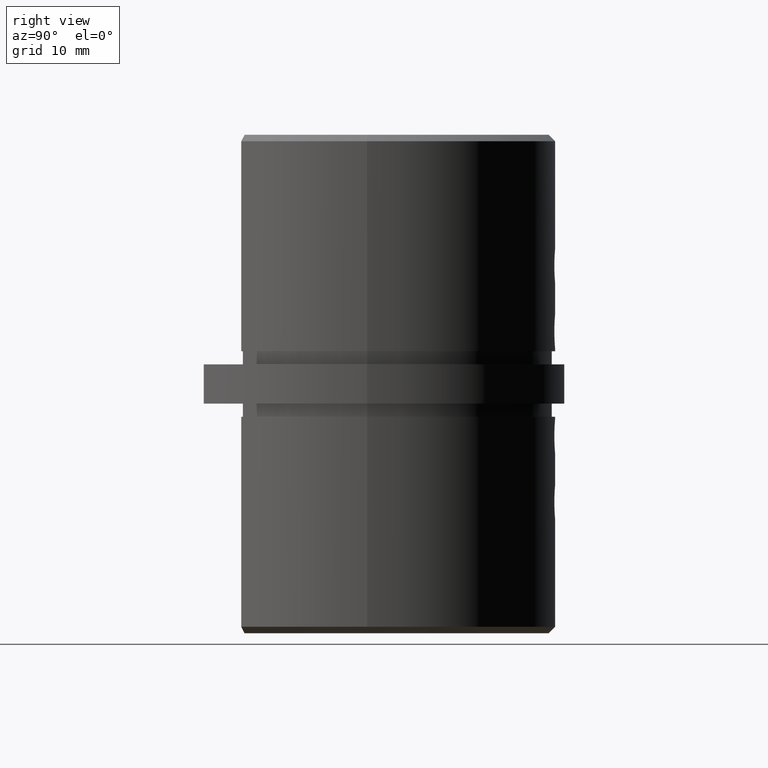
[diagram: clean part render]
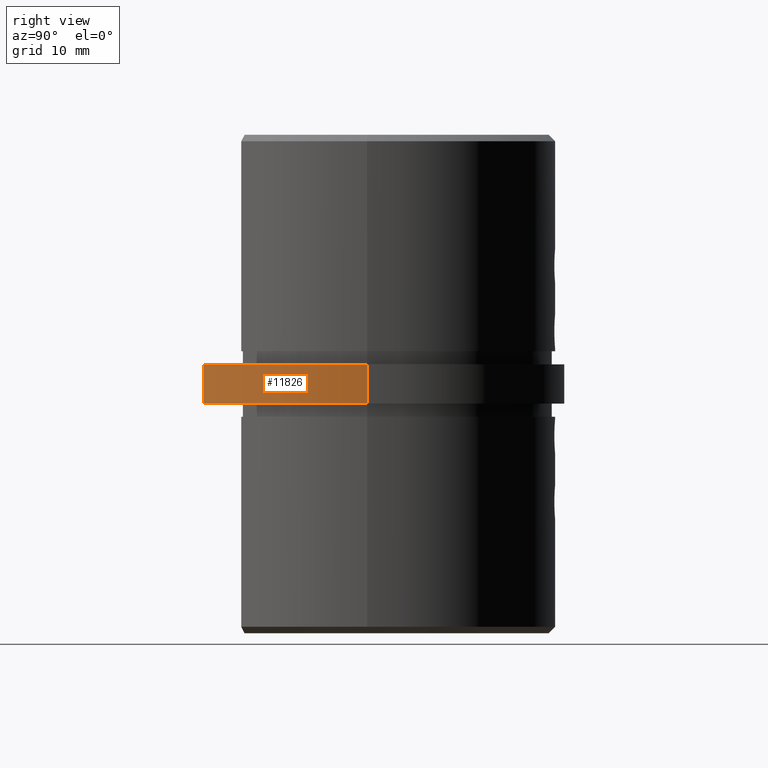
[diagram: same view with one face highlighted and labeled with its STEP entity id]
A machine part, right view. The second image highlights one B-rep face of the part: STEP entity #11826.
In plain terms, the highlighted cylindrical surface (partial cylindrical patch) has radius 30.15 mm, axis along (-0, -0, -1).
Its self-contained STEP definition (entity closure, byte-faithful):
#231 = CIRCLE ( 'NONE', #1658, 30.15000000000000213 ) ;
#325 = DIRECTION ( 'NONE',  ( 0.000000000000000000, 0.000000000000000000, 1.000000000000000000 ) ) ;
#1115 = VERTEX_POINT ( 'NONE', #8573 ) ;
#1167 = ORIENTED_EDGE ( 'NONE', *, *, #10918, .F. ) ;
#1658 = AXIS2_PLACEMENT_3D ( 'NONE', #3305, #6250, #16366 ) ;
#2430 = EDGE_CURVE ( 'NONE', #1115, #13264, #231, .T. ) ;
#2435 = CARTESIAN_POINT ( 'NONE',  ( 17.00000000000000355, -24.90025100275095582, -3.000000000000000000 ) ) ;
#2977 = CARTESIAN_POINT ( 'NONE',  ( 30.15000000000000213, 3.692310099429270397E-15, 3.000000000000000000 ) ) ;
#3080 = DIRECTION ( 'NONE',  ( -0.000000000000000000, -0.000000000000000000, -1.000000000000000000 ) ) ;
#3305 = CARTESIAN_POINT ( 'NONE',  ( 0.000000000000000000, 0.000000000000000000, 3.000000000000000000 ) ) ;
#3424 = DIRECTION ( 'NONE',  ( -0.000000000000000000, -0.000000000000000000, -1.000000000000000000 ) ) ;
#4241 = AXIS2_PLACEMENT_3D ( 'NONE', #8192, #3424, #14480 ) ;
#4767 = VECTOR ( 'NONE', #5617, 1000.000000000000000 ) ;
#5401 = ORIENTED_EDGE ( 'NONE', *, *, #14409, .T. ) ;
#5554 = DIRECTION ( 'NONE',  ( 1.000000000000000000, 0.000000000000000000, 0.000000000000000000 ) ) ;
#5617 = DIRECTION ( 'NONE',  ( -0.000000000000000000, -0.000000000000000000, -1.000000000000000000 ) ) ;
#6250 = DIRECTION ( 'NONE',  ( 0.000000000000000000, 0.000000000000000000, 1.000000000000000000 ) ) ;
#6477 = CIRCLE ( 'NONE', #6665, 30.15000000000000213 ) ;
#6665 = AXIS2_PLACEMENT_3D ( 'NONE', #9330, #325, #5554 ) ;
#7204 = EDGE_CURVE ( 'NONE', #16157, #15135, #6477, .T. ) ;
#7846 = VECTOR ( 'NONE', #3080, 1000.000000000000000 ) ;
#8192 = CARTESIAN_POINT ( 'NONE',  ( 0.000000000000000000, 0.000000000000000000, 3.000000000000000000 ) ) ;
#8573 = CARTESIAN_POINT ( 'NONE',  ( 17.00000000000000355, -24.90025100275095582, 3.000000000000000000 ) ) ;
#9155 = LINE ( 'NONE', #10617, #4767 ) ;
#9330 = CARTESIAN_POINT ( 'NONE',  ( 0.000000000000000000, 0.000000000000000000, -3.000000000000000000 ) ) ;
#10504 = ORIENTED_EDGE ( 'NONE', *, *, #2430, .F. ) ;
#10617 = CARTESIAN_POINT ( 'NONE',  ( 17.00000000000000355, -24.90025100275095582, 3.000000000000000000 ) ) ;
#10918 = EDGE_CURVE ( 'NONE', #13264, #15135, #13758, .T. ) ;
#11826 = ADVANCED_FACE ( 'NONE', ( #15315 ), #15107, .T. ) ;
#13264 = VERTEX_POINT ( 'NONE', #14477 ) ;
#13454 = EDGE_LOOP ( 'NONE', ( #1167, #10504, #5401, #13955 ) ) ;
#13758 = LINE ( 'NONE', #2977, #7846 ) ;
#13955 = ORIENTED_EDGE ( 'NONE', *, *, #7204, .T. ) ;
#14409 = EDGE_CURVE ( 'NONE', #1115, #16157, #9155, .T. ) ;
#14477 = CARTESIAN_POINT ( 'NONE',  ( 30.15000000000000213, 3.692310099429270397E-15, 3.000000000000000000 ) ) ;
#14480 = DIRECTION ( 'NONE',  ( -1.000000000000000000, 0.000000000000000000, 0.000000000000000000 ) ) ;
#15107 = CYLINDRICAL_SURFACE ( 'NONE', #4241, 30.15000000000000213 ) ;
#15135 = VERTEX_POINT ( 'NONE', #15308 ) ;
#15308 = CARTESIAN_POINT ( 'NONE',  ( 30.15000000000000213, 3.692310099429270397E-15, -3.000000000000000000 ) ) ;
#15315 = FACE_OUTER_BOUND ( 'NONE', #13454, .T. ) ;
#16157 = VERTEX_POINT ( 'NONE', #2435 ) ;
#16366 = DIRECTION ( 'NONE',  ( 1.000000000000000000, 0.000000000000000000, 0.000000000000000000 ) ) ;